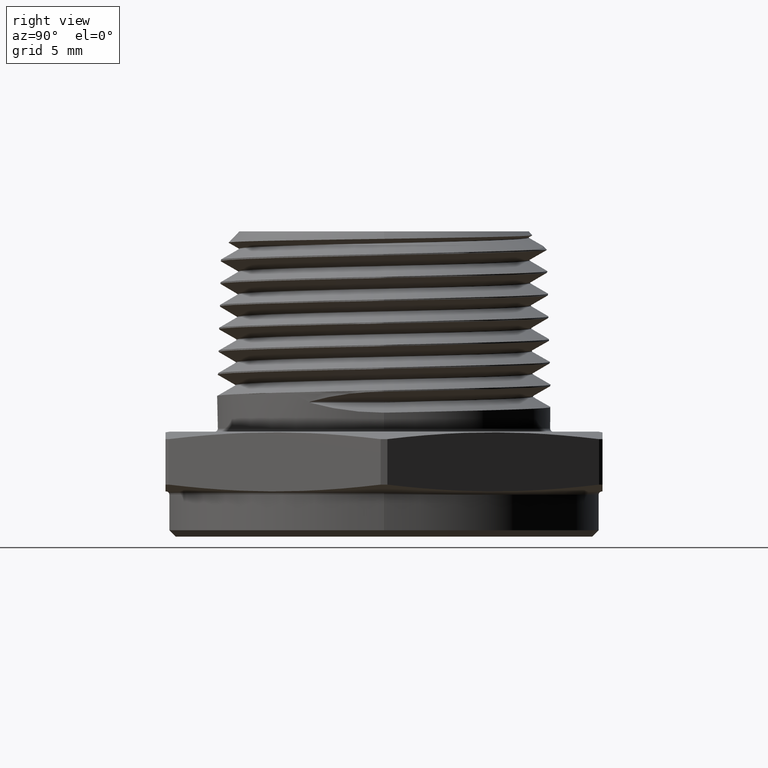
[diagram: clean part render]
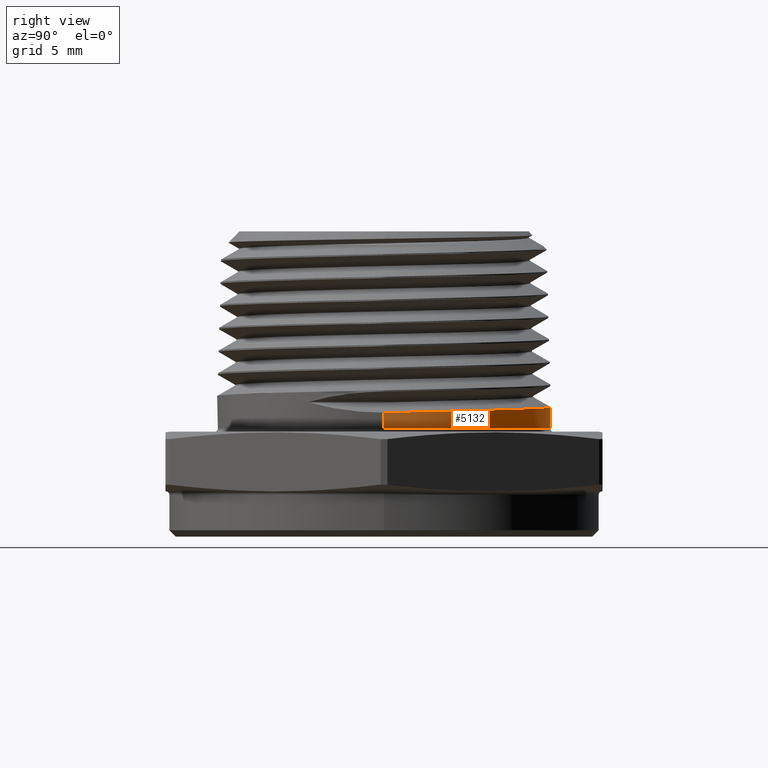
[diagram: same view with one face highlighted and labeled with its STEP entity id]
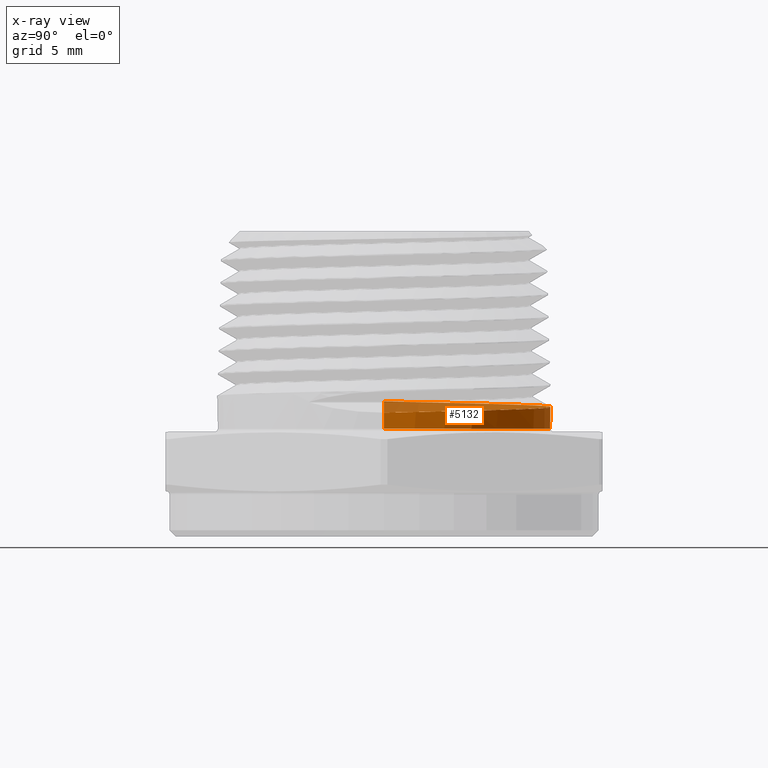
[diagram: x-ray of the same camera — body ghosted, the highlighted face saturated]
A machine part, right view. The second image highlights one B-rep face of the part: STEP entity #5132.
The next image is the same camera in x-ray: the body ghosted, the highlighted face saturated — about 28% of this face is hidden behind the body in this view.
In plain terms, the highlighted cylindrical surface (partial cylindrical patch) has radius 13.335 mm, axis along (-0, -0, -1).
Its self-contained STEP definition (entity closure, byte-faithful):
#956 = LINE ( 'NONE', #3432, #959 ) ;
#957 = CIRCLE ( 'NONE', #5201, 0.5250000000000000200 ) ;
#959 = VECTOR ( 'NONE', #3480, 39.37007874015748100 ) ;
#961 = LINE ( 'NONE', #3482, #963 ) ;
#963 = VECTOR ( 'NONE', #3481, 39.37007874015748100 ) ;
#1157 = CARTESIAN_POINT ( 'NONE',  ( -0.5250000000000000200, 0.0000000000000000000, 0.2000000000000000400 ) ) ;
#1160 = CARTESIAN_POINT ( 'NONE',  ( 0.5250000000000000200, 6.429395695523603700E-017, 0.2000000000000000400 ) ) ;
#1187 = CARTESIAN_POINT ( 'NONE',  ( 0.5250000000000000200, 7.715274834628322400E-016, 0.2497518106790619100 ) ) ;
#1188 = CARTESIAN_POINT ( 'NONE',  ( -0.5250000000000002400, -7.909524035230545700E-013, 0.2849376591746488100 ) ) ;
#2895 = DIRECTION ( 'NONE',  ( -1.000000000000000000, 0.0000000000000000000, 0.0000000000000000000 ) ) ;
#2896 = CARTESIAN_POINT ( 'NONE',  ( 0.0000000000000000000, 0.0000000000000000000, 0.8199999999999999500 ) ) ;
#2897 = DIRECTION ( 'NONE',  ( -0.0000000000000000000, -0.0000000000000000000, -1.000000000000000000 ) ) ;
#2979 = AXIS2_PLACEMENT_3D ( 'NONE', #2896, #2897, #2895 ) ;
#3383 = B_SPLINE_CURVE_WITH_KNOTS ( 'NONE', 3,
 ( #3433, #3431, #3426, #3434, #3435, #3436, #3437, #3438, #3439, #3440, #3441, #3442, #3443, #3444, #3445, #3446, #3447, #3448, #3449, #3450, #3451, #3452, #3453, #3454, #3455, #3456, #3457, #3458, #3459, #3460, #3461, #3462, #3463, #3464, #3465, #3466, #3467, #3468, #3469, #3470, #3471, #3472, #3473, #3474, #3475, #3476, #3477, #3478, #3479 ),
 .UNSPECIFIED., .F., .F.,
 ( 4, 2, 2, 2, 2, 2, 2, 2, 2, 2, 2, 2, 2, 1, 2, 2, 2, 2, 2, 2, 2, 2, 2, 2, 4 ),
 ( 0.0000000000000000000, 0.002621706231930944600, 0.003932559347896417800, 0.005243412463861891000, 0.007865118695792835600, 0.01048682492772378400, 0.01179767804368925900, 0.01310853115965473200, 0.01573023739158568200, 0.01704109050755115600, 0.01835194362351663300, 0.02097364985544758500, 0.02228450297141306200, 0.02359535608737854300, 0.02490620920334401700, 0.02621706231930949100, 0.02883876855124044300, 0.03014962166720592000, 0.03146047478317139800, 0.03408218101510235300, 0.03539303413106783400, 0.03670388724703330800, 0.03932559347896426300, 0.04063644659492974400, 0.04194729971089521800 ),
 .UNSPECIFIED. ) ;
#3405 = EDGE_CURVE ( 'NONE', #4823, #4824, #3383, .T. ) ;
#3406 = EDGE_CURVE ( 'NONE', #4823, #4796, #956, .T. ) ;
#3407 = EDGE_CURVE ( 'NONE', #4796, #4793, #957, .T. ) ;
#3408 = EDGE_CURVE ( 'NONE', #4824, #4793, #961, .T. ) ;
#3426 = CARTESIAN_POINT ( 'NONE',  ( 0.5215969503407783500, 0.06892395384728831900, 0.2512039739280828000 ) ) ;
#3431 = CARTESIAN_POINT ( 'NONE',  ( 0.5250000000000000200, 0.03468023889482556300, 0.2504916560065520400 ) ) ;
#3432 = CARTESIAN_POINT ( 'NONE',  ( 0.5250000000000000200, 6.429395695523603700E-017, 0.8199999999999999500 ) ) ;
#3433 = CARTESIAN_POINT ( 'NONE',  ( 0.5250000000000000200, 7.715274834628322400E-016, 0.2497518106790619100 ) ) ;
#3434 = CARTESIAN_POINT ( 'NONE',  ( 0.5114757469851676200, 0.1196444012507499900, 0.2523073953153847100 ) ) ;
#3435 = CARTESIAN_POINT ( 'NONE',  ( 0.5072321859708676100, 0.1365195453224728200, 0.2526816770068905400 ) ) ;
#3436 = CARTESIAN_POINT ( 'NONE',  ( 0.4971856361053923500, 0.1694948966497685200, 0.2534262612872594800 ) ) ;
#3437 = CARTESIAN_POINT ( 'NONE',  ( 0.4913843039208951600, 0.1856311989531119500, 0.2537972365466819000 ) ) ;
#3438 = CARTESIAN_POINT ( 'NONE',  ( 0.4717000398895712700, 0.2330106800697064600, 0.2548913678403916200 ) ) ;
#3439 = CARTESIAN_POINT ( 'NONE',  ( 0.4555591402508772900, 0.2632343981453638100, 0.2556002596304622900 ) ) ;
#3440 = CARTESIAN_POINT ( 'NONE',  ( 0.4169962517509278600, 0.3208435828542426400, 0.2570793242627745200 ) ) ;
#3441 = CARTESIAN_POINT ( 'NONE',  ( 0.3951735212370535700, 0.3473217602995218900, 0.2578266005923771100 ) ) ;
#3442 = CARTESIAN_POINT ( 'NONE',  ( 0.3588758550959716400, 0.3835694199167185600, 0.2589206880351478400 ) ) ;
#3443 = CARTESIAN_POINT ( 'NONE',  ( 0.3461733121378139900, 0.3950767856512881800, 0.2592801364623598100 ) ) ;
#3444 = CARTESIAN_POINT ( 'NONE',  ( 0.3195354585556496300, 0.4169157220861897100, 0.2600056036852588800 ) ) ;
#3445 = CARTESIAN_POINT ( 'NONE',  ( 0.3055425049340225200, 0.4272762233297628400, 0.2603730481183816900 ) ) ;
#3446 = CARTESIAN_POINT ( 'NONE',  ( 0.2625834192116747700, 0.4559163534381240900, 0.2614746459839539800 ) ) ;
#3447 = CARTESIAN_POINT ( 'NONE',  ( 0.2324104352282080300, 0.4720027555528123500, 0.2622193122403099800 ) ) ;
#3448 = CARTESIAN_POINT ( 'NONE',  ( 0.1848747981622937700, 0.4916709895016727600, 0.2633166378056081600 ) ) ;
#3449 = CARTESIAN_POINT ( 'NONE',  ( 0.1686027982095997200, 0.4974915758819397100, 0.2636790565045144000 ) ) ;
#3450 = CARTESIAN_POINT ( 'NONE',  ( 0.1354586640535449800, 0.5075191838447406000, 0.2644083645570500200 ) ) ;
#3451 = CARTESIAN_POINT ( 'NONE',  ( 0.1187707543034440700, 0.5116754936184955100, 0.2647713252645128000 ) ) ;
#3452 = CARTESIAN_POINT ( 'NONE',  ( 0.06837094205448134000, 0.5216546996555701000, 0.2658675047421684700 ) ) ;
#3453 = CARTESIAN_POINT ( 'NONE',  ( 0.03432622829010269200, 0.5250113757949220700, 0.2666125241680023000 ) ) ;
#3454 = CARTESIAN_POINT ( 'NONE',  ( -0.01742343546182841300, 0.5249942690757516400, 0.2677163935176766800 ) ) ;
#3455 = CARTESIAN_POINT ( 'NONE',  ( -0.03479495404721157800, 0.5241275735291687200, 0.2680811307544994600 ) ) ;
#3456 = CARTESIAN_POINT ( 'NONE',  ( -0.06900112261399814200, 0.5207295336724526700, 0.2688051074760903200 ) ) ;
#3457 = CARTESIAN_POINT ( 'NONE',  ( -0.1028656383279515100, 0.5156732394006062800, 0.2695277322864627600 ) ) ;
#3458 = CARTESIAN_POINT ( 'NONE',  ( -0.1360575158968320200, 0.5073539318044556500, 0.2702638766872204100 ) ) ;
#3459 = CARTESIAN_POINT ( 'NONE',  ( -0.1689088717333539500, 0.4973826020270734600, 0.2710056593657725900 ) ) ;
#3460 = CARTESIAN_POINT ( 'NONE',  ( -0.1852428230975461700, 0.4915371147241092700, 0.2713812053550936400 ) ) ;
#3461 = CARTESIAN_POINT ( 'NONE',  ( -0.2331278611752420900, 0.4716682679443899300, 0.2724869718200804700 ) ) ;
#3462 = CARTESIAN_POINT ( 'NONE',  ( -0.2632930536133611900, 0.4554924236538481800, 0.2731951004198448500 ) ) ;
#3463 = CARTESIAN_POINT ( 'NONE',  ( -0.3059778882765885100, 0.4269606854355278400, 0.2742903828202099500 ) ) ;
#3464 = CARTESIAN_POINT ( 'NONE',  ( -0.3197759506032987800, 0.4167336375605391600, 0.2746598448101493200 ) ) ;
#3465 = CARTESIAN_POINT ( 'NONE',  ( -0.3464864761507888700, 0.3948046416942067000, 0.2754065502700162600 ) ) ;
#3466 = CARTESIAN_POINT ( 'NONE',  ( -0.3593342549676959400, 0.3831430385519428700, 0.2757821202054479600 ) ) ;
#3467 = CARTESIAN_POINT ( 'NONE',  ( -0.3957272862405490900, 0.3467040439059064200, 0.2768805530116510400 ) ) ;
#3468 = CARTESIAN_POINT ( 'NONE',  ( -0.4174117307641608300, 0.3202716001908710300, 0.2775878826449317800 ) ) ;
#3469 = CARTESIAN_POINT ( 'NONE',  ( -0.4460578440929952000, 0.2774036092775246100, 0.2786877280874030000 ) ) ;
#3470 = CARTESIAN_POINT ( 'NONE',  ( -0.4549984438316710400, 0.2624862255041380800, 0.2790618627298328500 ) ) ;
#3471 = CARTESIAN_POINT ( 'NONE',  ( -0.4712485940056141400, 0.2320503503905634600, 0.2798073495007503100 ) ) ;
#3472 = CARTESIAN_POINT ( 'NONE',  ( -0.4785711544843529500, 0.2165346551764333300, 0.2801787124674870500 ) ) ;
#3473 = CARTESIAN_POINT ( 'NONE',  ( -0.4981918023728462200, 0.1691163955267174500, 0.2812733429828134200 ) ) ;
#3474 = CARTESIAN_POINT ( 'NONE',  ( -0.5081655264180279200, 0.1363511752055858700, 0.2819818665883845900 ) ) ;
#3475 = CARTESIAN_POINT ( 'NONE',  ( -0.5182948017164994400, 0.08541200043652226500, 0.2830897986444606600 ) ) ;
#3476 = CARTESIAN_POINT ( 'NONE',  ( -0.5208191080702269100, 0.06831203067259204700, 0.2834616830158689900 ) ) ;
#3477 = CARTESIAN_POINT ( 'NONE',  ( -0.5241668713621482300, 0.03417847030071607300, 0.2842027391627479600 ) ) ;
#3478 = CARTESIAN_POINT ( 'NONE',  ( -0.5250000000000257800, 0.01709671150355191600, 0.2845729292171472200 ) ) ;
#3479 = CARTESIAN_POINT ( 'NONE',  ( -0.5250000000000002400, -7.909524035230545700E-013, 0.2849376591746488100 ) ) ;
#3480 = DIRECTION ( 'NONE',  ( -0.0000000000000000000, -0.0000000000000000000, -1.000000000000000000 ) ) ;
#3481 = DIRECTION ( 'NONE',  ( -0.0000000000000000000, -0.0000000000000000000, -1.000000000000000000 ) ) ;
#3482 = CARTESIAN_POINT ( 'NONE',  ( -0.5250000000000000200, 0.0000000000000000000, 0.8199999999999999500 ) ) ;
#3485 = CARTESIAN_POINT ( 'NONE',  ( 0.0000000000000000000, 0.0000000000000000000, 0.2000000000000000400 ) ) ;
#3486 = DIRECTION ( 'NONE',  ( -0.0000000000000000000, 0.0000000000000000000, 1.000000000000000000 ) ) ;
#3487 = DIRECTION ( 'NONE',  ( 1.000000000000000000, 0.0000000000000000000, 0.0000000000000000000 ) ) ;
#4665 = FACE_OUTER_BOUND ( 'NONE', #5635, .T. ) ;
#4668 = CYLINDRICAL_SURFACE ( 'NONE', #2979, 0.5250000000000000200 ) ;
#4793 = VERTEX_POINT ( 'NONE', #1157 ) ;
#4796 = VERTEX_POINT ( 'NONE', #1160 ) ;
#4823 = VERTEX_POINT ( 'NONE', #1187 ) ;
#4824 = VERTEX_POINT ( 'NONE', #1188 ) ;
#4982 = ORIENTED_EDGE ( 'NONE', *, *, #3405, .F. ) ;
#4983 = ORIENTED_EDGE ( 'NONE', *, *, #3406, .T. ) ;
#4984 = ORIENTED_EDGE ( 'NONE', *, *, #3407, .T. ) ;
#4985 = ORIENTED_EDGE ( 'NONE', *, *, #3408, .F. ) ;
#5132 = ADVANCED_FACE ( 'NONE', ( #4665 ), #4668, .T. ) ;
#5201 = AXIS2_PLACEMENT_3D ( 'NONE', #3485, #3486, #3487 ) ;
#5635 = EDGE_LOOP ( 'NONE', ( #4982, #4983, #4984, #4985 ) ) ;